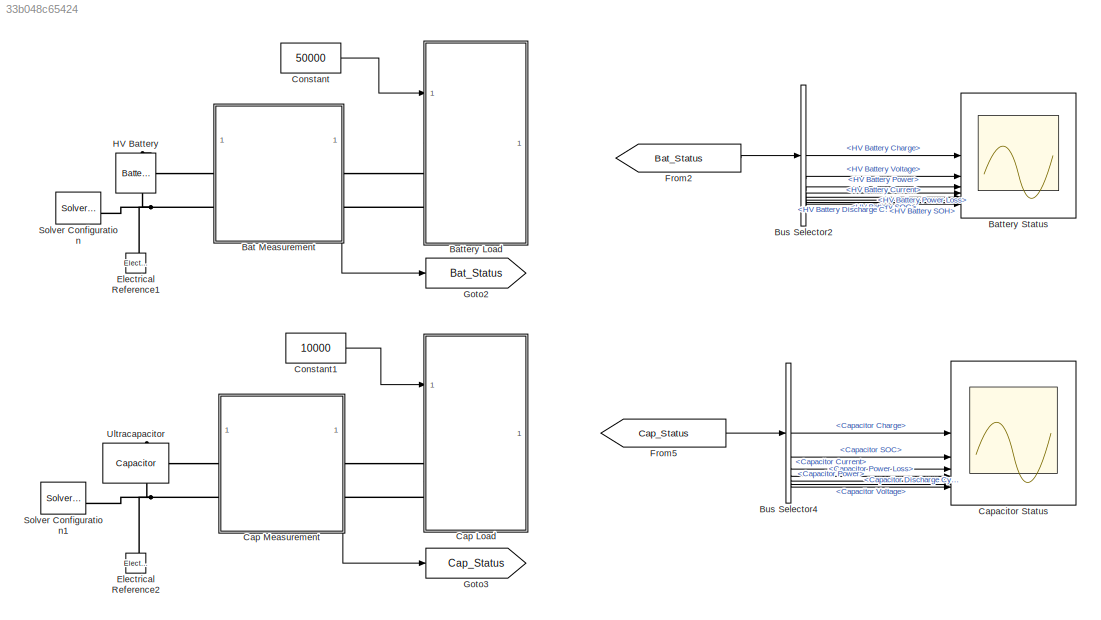
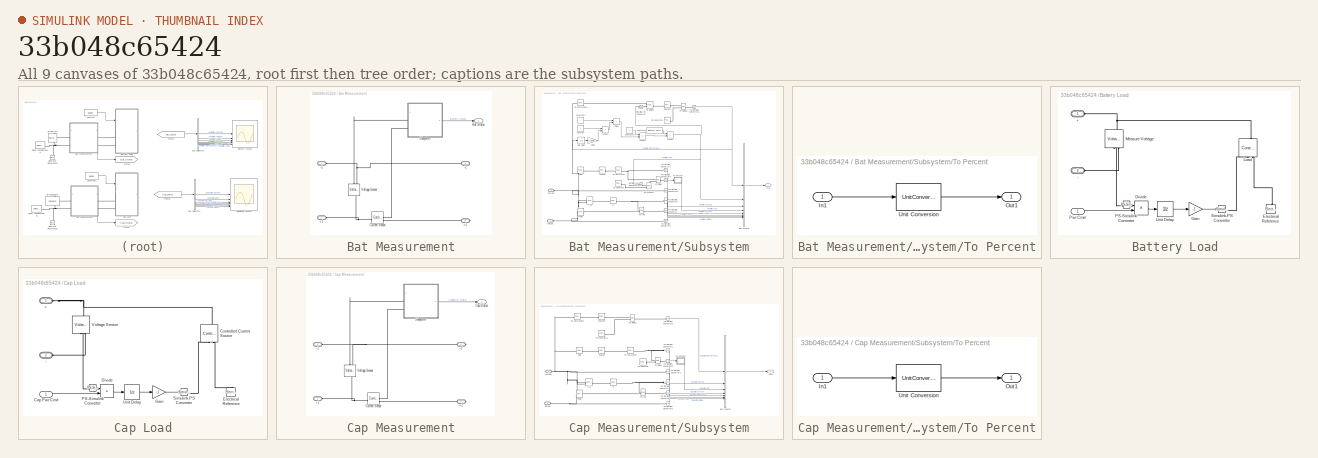
[diagram: thumbnail index - all 9 canvases of the model, root first then tree order]
MODEL slx_33b048c65424
KIND model
CONFIG AbsTol = auto
CONFIG EnableMultiTasking = off
CONFIG FixedStep = auto
CONFIG MaxStep = auto
CONFIG MinStep = auto
CONFIG RelTol = 1e-3
CONFIG SampleTimeConstraint = Unconstrained
CONFIG SolverName = VariableStepAuto
CONFIG StartTime = 0.0
CONFIG StopTime = 110
BLOCK [SubSystem] Bat Measurement
  NameLocation = top
  PortSchema = {"entries":[{"content":{"sides":[{"content":{"connectorIds":["LConn1","LConn2"]},"type":"ConnectorPlacement.EquallySpacedRectSide","uuid":"d922d1f1-019d-451f-8be4-16b01e818775"},{"content":{"connectorIds":["RConn1","RConn2"],"side":"RIGHT"},"type":"ConnectorPlacement.EquallySpacedRectSide","uuid":"6462d40f-4676-4bff-8e25-5b847feb4e24"},{"content":{"side":"TOP"},"type":"ConnectorPlacement.EquallySp...<+395ch>
BLOCK [PMIOPort] Bat Measurement/+1
  Side = Left
BLOCK [PMIOPort] Bat Measurement/+2
  Port = 3
  Side = Right
BLOCK [PMIOPort] Bat Measurement/-1
  Port = 2
  Side = Left
BLOCK [PMIOPort] Bat Measurement/-2
  Port = 4
  Side = Right
BLOCK [Outport] Bat Measurement/Bat Status
BLOCK [Reference] Bat Measurement/Current Sensor  REF=fl_lib/Electrical/Electrical Sensors/Current Sensor
  SourceBlock = fl_lib/Electrical/Electrical Sensors/Current Sensor
  SourceType = Current Sensor
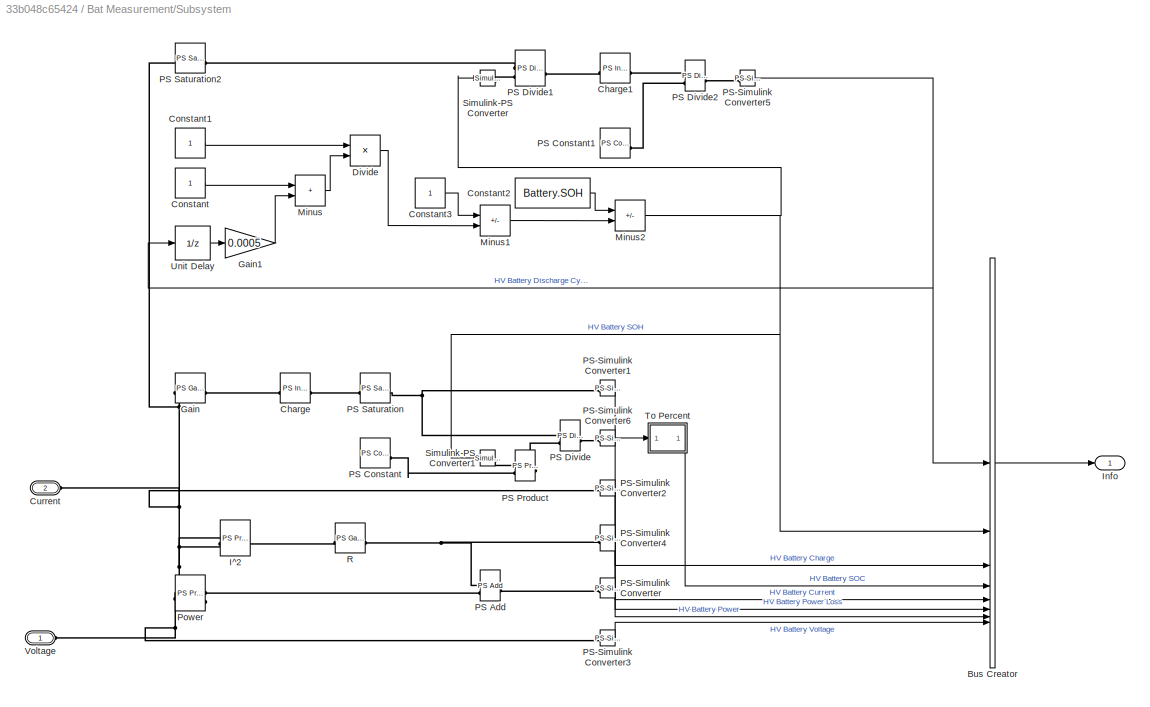
BLOCK [SubSystem] Bat Measurement/Subsystem
BLOCK [BusCreator] Bat Measurement/Subsystem/Bus Creator
  DisplayOption = bar
  InheritFromInputs = on
  Inputs = 8
BLOCK [Reference] Bat Measurement/Subsystem/Charge  REF=fl_lib/Physical Signals/Linear Operators/PS Integrator
  AttributesFormatString = %<x0> [%<x0_unit>]
  SourceBlock = fl_lib/Physical Signals/Linear Operators/PS Integrator
  SourceType = PS Integrator
BLOCK [Reference] Bat Measurement/Subsystem/Charge1  REF=fl_lib/Physical Signals/Linear Operators/PS Integrator
  AttributesFormatString = %<x0> [%<x0_unit>]
  SourceBlock = fl_lib/Physical Signals/Linear Operators/PS Integrator
  SourceType = PS Integrator
BLOCK [Constant] Bat Measurement/Subsystem/Constant
BLOCK [Constant] Bat Measurement/Subsystem/Constant1
BLOCK [Constant] Bat Measurement/Subsystem/Constant2
  Value = Battery.SOH
BLOCK [Constant] Bat Measurement/Subsystem/Constant3
BLOCK [PMIOPort] Bat Measurement/Subsystem/Current
  Port = 2
  Side = Left
BLOCK [Product] Bat Measurement/Subsystem/Divide
  Inputs = */
BLOCK [Reference] Bat Measurement/Subsystem/Gain  REF=fl_lib/Physical Signals/Functions/PS Gain
  AttributesFormatString = %<gain>
  SourceBlock = fl_lib/Physical Signals/Functions/PS Gain
  SourceType = PS Gain
BLOCK [Gain] Bat Measurement/Subsystem/Gain1
  Gain = 0.0005
BLOCK [Reference] Bat Measurement/Subsystem/I^2  REF=fl_lib/Physical Signals/Functions/PS Product
  SourceBlock = fl_lib/Physical Signals/Functions/PS Product
  SourceType = PS Product
BLOCK [Outport] Bat Measurement/Subsystem/Info
BLOCK [Sum] Bat Measurement/Subsystem/Minus
  IconShape = rectangular
BLOCK [Sum] Bat Measurement/Subsystem/Minus1
  IconShape = rectangular
  Inputs = +-
BLOCK [Sum] Bat Measurement/Subsystem/Minus2
  IconShape = rectangular
  Inputs = +-
BLOCK [Reference] Bat Measurement/Subsystem/PS Add  REF=fl_lib/Physical Signals/Functions/PS Add
  SourceBlock = fl_lib/Physical Signals/Functions/PS Add
  SourceType = PS Add
BLOCK [Reference] Bat Measurement/Subsystem/PS Constant  REF=fl_lib/Physical Signals/Sources/PS Constant
  AttributesFormatString = %<constant> [%<constant_unit>]
  NameLocation = left
  SourceBlock = fl_lib/Physical Signals/Sources/PS Constant
  SourceType = PS Constant
BLOCK [Reference] Bat Measurement/Subsystem/PS Constant1  REF=fl_lib/Physical Signals/Sources/PS Constant
  SourceBlock = fl_lib/Physical Signals/Sources/PS Constant
  SourceType = PS Constant
BLOCK [Reference] Bat Measurement/Subsystem/PS Divide  REF=fl_lib/Physical Signals/Functions/PS Divide
  SourceBlock = fl_lib/Physical Signals/Functions/PS Divide
  SourceType = PS Divide
BLOCK [Reference] Bat Measurement/Subsystem/PS Divide1  REF=fl_lib/Physical Signals/Functions/PS Divide
  SourceBlock = fl_lib/Physical Signals/Functions/PS Divide
  SourceType = PS Divide
BLOCK [Reference] Bat Measurement/Subsystem/PS Divide2  REF=fl_lib/Physical Signals/Functions/PS Divide
  SourceBlock = fl_lib/Physical Signals/Functions/PS Divide
  SourceType = PS Divide
BLOCK [Reference] Bat Measurement/Subsystem/PS Product  REF=fl_lib/Physical Signals/Functions/PS Product
  SourceBlock = fl_lib/Physical Signals/Functions/PS Product
  SourceType = PS Product
BLOCK [Reference] Bat Measurement/Subsystem/PS Saturation  REF=fl_lib/Physical Signals/Nonlinear Operators/PS Saturation
  AttributesFormatString = Upper: %<upper_limit>\nLower: %<lower_limit>
  NameLocation = top
  SourceBlock = fl_lib/Physical Signals/Nonlinear Operators/PS Saturation
  SourceType = PS Saturation
BLOCK [Reference] Bat Measurement/Subsystem/PS Saturation2  REF=fl_lib/Physical Signals/Nonlinear Operators/PS Saturation
  SourceBlock = fl_lib/Physical Signals/Nonlinear Operators/PS Saturation
  SourceType = PS Saturation
BLOCK [Reference] Bat Measurement/Subsystem/PS-Simulink Converter  REF=nesl_utility/PS-Simulink
Converter
  AttributesFormatString = %<Unit>
  SourceBlock = nesl_utility/PS-Simulink\nConverter
  SourceType = PS-Simulink\nConverter
BLOCK [Reference] Bat Measurement/Subsystem/PS-Simulink Converter1  REF=nesl_utility/PS-Simulink
Converter
  AttributesFormatString = %<Unit>
  SourceBlock = nesl_utility/PS-Simulink\nConverter
  SourceType = PS-Simulink\nConverter
BLOCK [Reference] Bat Measurement/Subsystem/PS-Simulink Converter2  REF=nesl_utility/PS-Simulink
Converter
  AttributesFormatString = %<Unit>
  SourceBlock = nesl_utility/PS-Simulink\nConverter
  SourceType = PS-Simulink\nConverter
BLOCK [Reference] Bat Measurement/Subsystem/PS-Simulink Converter3  REF=nesl_utility/PS-Simulink
Converter
  AttributesFormatString = %<Unit>
  SourceBlock = nesl_utility/PS-Simulink\nConverter
  SourceType = PS-Simulink\nConverter
BLOCK [Reference] Bat Measurement/Subsystem/PS-Simulink Converter4  REF=nesl_utility/PS-Simulink
Converter
  AttributesFormatString = %<Unit>
  SourceBlock = nesl_utility/PS-Simulink\nConverter
  SourceType = PS-Simulink\nConverter
BLOCK [Reference] Bat Measurement/Subsystem/PS-Simulink Converter5  REF=nesl_utility/PS-Simulink
Converter
  SourceBlock = nesl_utility/PS-Simulink\nConverter
  SourceType = PS-Simulink\nConverter
BLOCK [Reference] Bat Measurement/Subsystem/PS-Simulink Converter6  REF=nesl_utility/PS-Simulink
Converter
  AttributesFormatString = %<Unit>
  SourceBlock = nesl_utility/PS-Simulink\nConverter
  SourceType = PS-Simulink\nConverter
BLOCK [Reference] Bat Measurement/Subsystem/Power  REF=fl_lib/Physical Signals/Functions/PS Product
  SourceBlock = fl_lib/Physical Signals/Functions/PS Product
  SourceType = PS Product
BLOCK [Reference] Bat Measurement/Subsystem/R  REF=fl_lib/Physical Signals/Functions/PS Gain
  AttributesFormatString = %<gain> [%<gain_unit>]
  SourceBlock = fl_lib/Physical Signals/Functions/PS Gain
  SourceType = PS Gain
BLOCK [Reference] Bat Measurement/Subsystem/Simulink-PS Converter  REF=nesl_utility/Simulink-PS
Converter
  SourceBlock = nesl_utility/Simulink-PS\nConverter
  SourceType = Simulink-PS\nConverter
BLOCK [Reference] Bat Measurement/Subsystem/Simulink-PS Converter1  REF=nesl_utility/Simulink-PS
Converter
  SourceBlock = nesl_utility/Simulink-PS\nConverter
  SourceType = Simulink-PS\nConverter
BLOCK [SubSystem] Bat Measurement/Subsystem/To Percent
  ShowPortLabels = none
BLOCK [Inport] Bat Measurement/Subsystem/To Percent/In1
BLOCK [Outport] Bat Measurement/Subsystem/To Percent/Out1
  AttributesFormatString = %<Unit>
  Unit = %
BLOCK [UnitConversion] Bat Measurement/Subsystem/To Percent/Unit Conversion
BLOCK [UnitDelay] Bat Measurement/Subsystem/Unit Delay
  HasFrameUpgradeWarning = on
  SampleTime = -1
BLOCK [PMIOPort] Bat Measurement/Subsystem/Voltage
  Side = Left
BLOCK [Reference] Bat Measurement/Voltage Sensor  REF=fl_lib/Electrical/Electrical Sensors/Voltage Sensor
  NameLocation = right
  SourceBlock = fl_lib/Electrical/Electrical Sensors/Voltage Sensor
  SourceType = Voltage Sensor
BLOCK [SubSystem] Battery Load
  NameLocation = top
BLOCK [PMIOPort] Battery Load/+
  Side = Left
BLOCK [PMIOPort] Battery Load/-
  Port = 2
  Side = Left
BLOCK [Product] Battery Load/Divide
  Inputs = /*
BLOCK [Reference] Battery Load/Electrical Reference  REF=fl_lib/Electrical/Electrical Elements/Electrical Reference
  NameLocation = right
  SourceBlock = fl_lib/Electrical/Electrical Elements/Electrical Reference
  SourceType = Electrical Reference
BLOCK [Gain] Battery Load/Gain
  Gain = -1
BLOCK [Reference] Battery Load/Load  REF=fl_lib/Electrical/Electrical Sources/Controlled Current
Source
  NameLocation = right
  SourceBlock = fl_lib/Electrical/Electrical Sources/Controlled Current\nSource
  SourceType = Controlled Current\nSource
BLOCK [Reference] Battery Load/Measure Voltage  REF=fl_lib/Electrical/Electrical Sensors/Voltage Sensor
  NameLocation = right
  SourceBlock = fl_lib/Electrical/Electrical Sensors/Voltage Sensor
  SourceType = Voltage Sensor
BLOCK [Reference] Battery Load/PS-Simulink Converter  REF=nesl_utility/PS-Simulink
Converter
  SourceBlock = nesl_utility/PS-Simulink\nConverter
  SourceType = PS-Simulink\nConverter
BLOCK [Inport] Battery Load/Pwr Cmd
BLOCK [Reference] Battery Load/Simulink-PS Converter  REF=nesl_utility/Simulink-PS
Converter
  SourceBlock = nesl_utility/Simulink-PS\nConverter
  SourceType = Simulink-PS\nConverter
BLOCK [UnitDelay] Battery Load/Unit Delay
  HasFrameUpgradeWarning = on
  SampleTime = -1
BLOCK [Scope] Battery Status
  Floating = off
  NumInputPorts = 8
  ScopeSpecificationString = Simulink.scopes.TimeScopeBlockCfg('CurrentConfiguration', extmgr.ConfigurationSet(extmgr.Configuration('Core','General UI',true),extmgr.Configuration('Core','Source UI',true),extmgr.Configuration('Sources','WiredSimulink',true,'DataLoggingVariableName','ScopeData1','DataLogging',true,'DataLoggingSaveFormat','StructureWithTime'),extmgr.Configuration('Visuals','Time Domain',true,'SerializedDisplays'...<+6371ch>
BLOCK [BusSelector] Bus Selector2
  OutputSignals = HV Battery Charge,HV Battery Voltage,HV Battery Power,HV Battery Power Loss,HV Battery Current,HV Battery SOC,HV Battery Discharge Cycle,HV Battery SOH
BLOCK [BusSelector] Bus Selector4
  OutputSignals = Capacitor Charge,Capacitor SOC,Capacitor Current,Capacitor Power Loss,Capacitor Power,Capacitor Voltage,Capacitor Discharge Cycle
BLOCK [SubSystem] Cap Load
  NameLocation = top
BLOCK [PMIOPort] Cap Load/+
  Side = Left
BLOCK [PMIOPort] Cap Load/-
  Port = 2
  Side = Left
BLOCK [Inport] Cap Load/Cap Pwr Cmd
BLOCK [Reference] Cap Load/Controlled Current Source  REF=fl_lib/Electrical/Electrical Sources/Controlled Current
Source
  NameLocation = right
  SourceBlock = fl_lib/Electrical/Electrical Sources/Controlled Current\nSource
  SourceType = Controlled Current\nSource
BLOCK [Product] Cap Load/Divide
  Inputs = /*
BLOCK [Reference] Cap Load/Electrical Reference  REF=fl_lib/Electrical/Electrical Elements/Electrical Reference
  NameLocation = right
  SourceBlock = fl_lib/Electrical/Electrical Elements/Electrical Reference
  SourceType = Electrical Reference
BLOCK [Gain] Cap Load/Gain
  Gain = -1
BLOCK [Reference] Cap Load/PS-Simulink Converter  REF=nesl_utility/PS-Simulink
Converter
  SourceBlock = nesl_utility/PS-Simulink\nConverter
  SourceType = PS-Simulink\nConverter
BLOCK [Reference] Cap Load/Simulink-PS Converter  REF=nesl_utility/Simulink-PS
Converter
  SourceBlock = nesl_utility/Simulink-PS\nConverter
  SourceType = Simulink-PS\nConverter
BLOCK [UnitDelay] Cap Load/Unit Delay
  HasFrameUpgradeWarning = on
  SampleTime = -1
BLOCK [Reference] Cap Load/Voltage Sensor  REF=fl_lib/Electrical/Electrical Sensors/Voltage Sensor
  NameLocation = right
  SourceBlock = fl_lib/Electrical/Electrical Sensors/Voltage Sensor
  SourceType = Voltage Sensor
BLOCK [SubSystem] Cap Measurement
  NameLocation = top
  PortSchema = {"entries":[{"content":{"sides":[{"content":{"connectorIds":["LConn1","LConn2"]},"type":"ConnectorPlacement.EquallySpacedRectSide","uuid":"d922d1f1-019d-451f-8be4-16b01e818775"},{"content":{"connectorIds":["RConn1","RConn2"],"side":"RIGHT"},"type":"ConnectorPlacement.EquallySpacedRectSide","uuid":"6462d40f-4676-4bff-8e25-5b847feb4e24"},{"content":{"side":"TOP"},"type":"ConnectorPlacement.EquallySp...<+395ch>
BLOCK [PMIOPort] Cap Measurement/+1
  Side = Left
BLOCK [PMIOPort] Cap Measurement/+2
  Port = 3
  Side = Right
BLOCK [PMIOPort] Cap Measurement/-1
  Port = 2
  Side = Left
BLOCK [PMIOPort] Cap Measurement/-2
  Port = 4
  Side = Right
BLOCK [Outport] Cap Measurement/Cap Status
BLOCK [Reference] Cap Measurement/Current Sensor  REF=fl_lib/Electrical/Electrical Sensors/Current Sensor
  SourceBlock = fl_lib/Electrical/Electrical Sensors/Current Sensor
  SourceType = Current Sensor
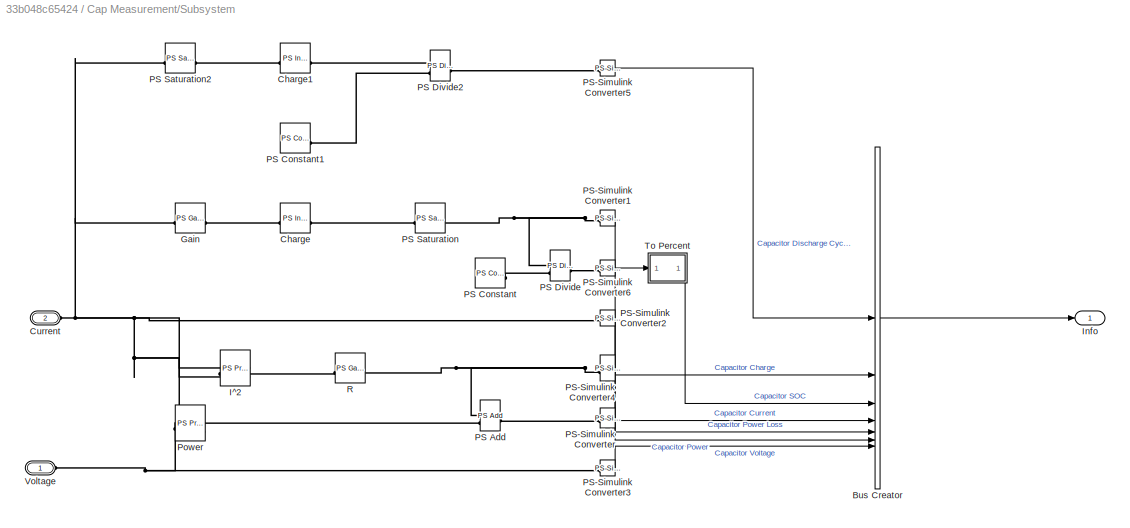
BLOCK [SubSystem] Cap Measurement/Subsystem
BLOCK [BusCreator] Cap Measurement/Subsystem/Bus Creator
  DisplayOption = bar
  InheritFromInputs = on
  Inputs = 7
BLOCK [Reference] Cap Measurement/Subsystem/Charge  REF=fl_lib/Physical Signals/Linear Operators/PS Integrator
  AttributesFormatString = %<x0> [%<x0_unit>]
  SourceBlock = fl_lib/Physical Signals/Linear Operators/PS Integrator
  SourceType = PS Integrator
BLOCK [Reference] Cap Measurement/Subsystem/Charge1  REF=fl_lib/Physical Signals/Linear Operators/PS Integrator
  AttributesFormatString = %<x0> [%<x0_unit>]
  SourceBlock = fl_lib/Physical Signals/Linear Operators/PS Integrator
  SourceType = PS Integrator
BLOCK [PMIOPort] Cap Measurement/Subsystem/Current
  Port = 2
  Side = Left
BLOCK [Reference] Cap Measurement/Subsystem/Gain  REF=fl_lib/Physical Signals/Functions/PS Gain
  AttributesFormatString = %<gain>
  SourceBlock = fl_lib/Physical Signals/Functions/PS Gain
  SourceType = PS Gain
BLOCK [Reference] Cap Measurement/Subsystem/I^2  REF=fl_lib/Physical Signals/Functions/PS Product
  SourceBlock = fl_lib/Physical Signals/Functions/PS Product
  SourceType = PS Product
BLOCK [Outport] Cap Measurement/Subsystem/Info
BLOCK [Reference] Cap Measurement/Subsystem/PS Add  REF=fl_lib/Physical Signals/Functions/PS Add
  SourceBlock = fl_lib/Physical Signals/Functions/PS Add
  SourceType = PS Add
BLOCK [Reference] Cap Measurement/Subsystem/PS Constant  REF=fl_lib/Physical Signals/Sources/PS Constant
  AttributesFormatString = %<constant> [%<constant_unit>]
  NameLocation = left
  SourceBlock = fl_lib/Physical Signals/Sources/PS Constant
  SourceType = PS Constant
BLOCK [Reference] Cap Measurement/Subsystem/PS Constant1  REF=fl_lib/Physical Signals/Sources/PS Constant
  AttributesFormatString = %<constant> [%<constant_unit>]
  NameLocation = left
  SourceBlock = fl_lib/Physical Signals/Sources/PS Constant
  SourceType = PS Constant
BLOCK [Reference] Cap Measurement/Subsystem/PS Divide  REF=fl_lib/Physical Signals/Functions/PS Divide
  SourceBlock = fl_lib/Physical Signals/Functions/PS Divide
  SourceType = PS Divide
BLOCK [Reference] Cap Measurement/Subsystem/PS Divide2  REF=fl_lib/Physical Signals/Functions/PS Divide
  SourceBlock = fl_lib/Physical Signals/Functions/PS Divide
  SourceType = PS Divide
BLOCK [Reference] Cap Measurement/Subsystem/PS Saturation  REF=fl_lib/Physical Signals/Nonlinear Operators/PS Saturation
  AttributesFormatString = Upper: %<upper_limit>\nLower: %<lower_limit>
  NameLocation = top
  SourceBlock = fl_lib/Physical Signals/Nonlinear Operators/PS Saturation
  SourceType = PS Saturation
BLOCK [Reference] Cap Measurement/Subsystem/PS Saturation2  REF=fl_lib/Physical Signals/Nonlinear Operators/PS Saturation
  SourceBlock = fl_lib/Physical Signals/Nonlinear Operators/PS Saturation
  SourceType = PS Saturation
BLOCK [Reference] Cap Measurement/Subsystem/PS-Simulink Converter  REF=nesl_utility/PS-Simulink
Converter
  AttributesFormatString = %<Unit>
  SourceBlock = nesl_utility/PS-Simulink\nConverter
  SourceType = PS-Simulink\nConverter
BLOCK [Reference] Cap Measurement/Subsystem/PS-Simulink Converter1  REF=nesl_utility/PS-Simulink
Converter
  AttributesFormatString = %<Unit>
  SourceBlock = nesl_utility/PS-Simulink\nConverter
  SourceType = PS-Simulink\nConverter
BLOCK [Reference] Cap Measurement/Subsystem/PS-Simulink Converter2  REF=nesl_utility/PS-Simulink
Converter
  AttributesFormatString = %<Unit>
  SourceBlock = nesl_utility/PS-Simulink\nConverter
  SourceType = PS-Simulink\nConverter
BLOCK [Reference] Cap Measurement/Subsystem/PS-Simulink Converter3  REF=nesl_utility/PS-Simulink
Converter
  AttributesFormatString = %<Unit>
  SourceBlock = nesl_utility/PS-Simulink\nConverter
  SourceType = PS-Simulink\nConverter
BLOCK [Reference] Cap Measurement/Subsystem/PS-Simulink Converter4  REF=nesl_utility/PS-Simulink
Converter
  AttributesFormatString = %<Unit>
  SourceBlock = nesl_utility/PS-Simulink\nConverter
  SourceType = PS-Simulink\nConverter
BLOCK [Reference] Cap Measurement/Subsystem/PS-Simulink Converter5  REF=nesl_utility/PS-Simulink
Converter
  SourceBlock = nesl_utility/PS-Simulink\nConverter
  SourceType = PS-Simulink\nConverter
BLOCK [Reference] Cap Measurement/Subsystem/PS-Simulink Converter6  REF=nesl_utility/PS-Simulink
Converter
  AttributesFormatString = %<Unit>
  SourceBlock = nesl_utility/PS-Simulink\nConverter
  SourceType = PS-Simulink\nConverter
BLOCK [Reference] Cap Measurement/Subsystem/Power  REF=fl_lib/Physical Signals/Functions/PS Product
  SourceBlock = fl_lib/Physical Signals/Functions/PS Product
  SourceType = PS Product
BLOCK [Reference] Cap Measurement/Subsystem/R  REF=fl_lib/Physical Signals/Functions/PS Gain
  AttributesFormatString = %<gain> [%<gain_unit>]
  SourceBlock = fl_lib/Physical Signals/Functions/PS Gain
  SourceType = PS Gain
BLOCK [SubSystem] Cap Measurement/Subsystem/To Percent
  ShowPortLabels = none
BLOCK [Inport] Cap Measurement/Subsystem/To Percent/In1
BLOCK [Outport] Cap Measurement/Subsystem/To Percent/Out1
  AttributesFormatString = %<Unit>
  Unit = %
BLOCK [UnitConversion] Cap Measurement/Subsystem/To Percent/Unit Conversion
BLOCK [PMIOPort] Cap Measurement/Subsystem/Voltage
  Side = Left
BLOCK [Reference] Cap Measurement/Voltage Sensor  REF=fl_lib/Electrical/Electrical Sensors/Voltage Sensor
  NameLocation = right
  SourceBlock = fl_lib/Electrical/Electrical Sensors/Voltage Sensor
  SourceType = Voltage Sensor
BLOCK [Scope] Capacitor Status
  Floating = off
  NumInputPorts = 7
  ScopeSpecificationString = Simulink.scopes.TimeScopeBlockCfg('CurrentConfiguration', extmgr.ConfigurationSet(extmgr.Configuration('Core','General UI',true),extmgr.Configuration('Core','Source UI',true),extmgr.Configuration('Sources','WiredSimulink',true,'DataLogging',true,'DataLoggingSaveFormat','StructureWithTime'),extmgr.Configuration('Visuals','Time Domain',true,'SerializedDisplays',{struct('MinYLimReal','1.59064','MaxYL...<+6323ch>
BLOCK [Constant] Constant
  Value = 50000
BLOCK [Constant] Constant1
  Value = 10000
BLOCK [Reference] Electrical Reference1  REF=fl_lib/Electrical/Electrical Elements/Electrical Reference
  NameLocation = right
  SourceBlock = fl_lib/Electrical/Electrical Elements/Electrical Reference
  SourceType = Electrical Reference
BLOCK [Reference] Electrical Reference2  REF=fl_lib/Electrical/Electrical Elements/Electrical Reference
  NameLocation = right
  SourceBlock = fl_lib/Electrical/Electrical Elements/Electrical Reference
  SourceType = Electrical Reference
BLOCK [From] From2
  GotoTag = Bat_Status
BLOCK [From] From5
  GotoTag = Cap_Status
BLOCK [Goto] Goto2
  GotoTag = Bat_Status
BLOCK [Goto] Goto3
  GotoTag = Cap_Status
BLOCK [Reference] HV Battery  REF=batteryecm_lib/Battery
  NameLocation = left
  SourceBlock = batteryecm_lib/Battery
  SourceType = Battery
BLOCK [Reference] Solver Configuration  REF=nesl_utility/Solver
Configuration
  SourceBlock = nesl_utility/Solver\nConfiguration
  SourceType = Solver\nConfiguration
BLOCK [Reference] Solver Configuration1  REF=nesl_utility/Solver
Configuration
  SourceBlock = nesl_utility/Solver\nConfiguration
  SourceType = Solver\nConfiguration
BLOCK [Reference] Ultracapacitor  REF=fl_lib/Electrical/Electrical Elements/Capacitor
  NameLocation = left
  SourceBlock = fl_lib/Electrical/Electrical Elements/Capacitor
  SourceType = Capacitor
LINE Bat Measurement/Subsystem/Bus Creator:1 -> Bat Measurement/Subsystem/Info:1
LINE Bat Measurement/Subsystem/Constant1:1 -> Bat Measurement/Subsystem/Divide:1
LINE Bat Measurement/Subsystem/Constant2:1 -> Bat Measurement/Subsystem/Minus2:1
LINE Bat Measurement/Subsystem/Constant3:1 -> Bat Measurement/Subsystem/Minus1:1
LINE Bat Measurement/Subsystem/Constant:1 -> Bat Measurement/Subsystem/Minus:1
LINE Bat Measurement/Subsystem/Divide:1 -> Bat Measurement/Subsystem/Minus1:2
LINE Bat Measurement/Subsystem/Gain1:1 -> Bat Measurement/Subsystem/Minus:2
LINE Bat Measurement/Subsystem/Minus1:1 -> Bat Measurement/Subsystem/Minus2:2
NET Bat Measurement/Subsystem/Minus2:1 -> Bat Measurement/Subsystem/Bus Creator:2, Bat Measurement/Subsystem/Simulink-PS Converter1:1, Bat Measurement/Subsystem/Simulink-PS Converter:1
LINE Bat Measurement/Subsystem/Minus:1 -> Bat Measurement/Subsystem/Divide:2
LINE Bat Measurement/Subsystem/PS-Simulink Converter1:1 -> Bat Measurement/Subsystem/Bus Creator:3
LINE Bat Measurement/Subsystem/PS-Simulink Converter2:1 -> Bat Measurement/Subsystem/Bus Creator:5
LINE Bat Measurement/Subsystem/PS-Simulink Converter3:1 -> Bat Measurement/Subsystem/Bus Creator:8
LINE Bat Measurement/Subsystem/PS-Simulink Converter4:1 -> Bat Measurement/Subsystem/Bus Creator:6
NET Bat Measurement/Subsystem/PS-Simulink Converter5:1 -> Bat Measurement/Subsystem/Bus Creator:1, Bat Measurement/Subsystem/Unit Delay:1
LINE Bat Measurement/Subsystem/PS-Simulink Converter6:1 -> Bat Measurement/Subsystem/To Percent:1
LINE Bat Measurement/Subsystem/PS-Simulink Converter:1 -> Bat Measurement/Subsystem/Bus Creator:7
LINE Bat Measurement/Subsystem/To Percent/In1:1 -> Bat Measurement/Subsystem/To Percent/Unit Conversion:1
LINE Bat Measurement/Subsystem/To Percent/Unit Conversion:1 -> Bat Measurement/Subsystem/To Percent/Out1:1
LINE Bat Measurement/Subsystem/To Percent:1 -> Bat Measurement/Subsystem/Bus Creator:4
LINE Bat Measurement/Subsystem/Unit Delay:1 -> Bat Measurement/Subsystem/Gain1:1
LINE Bat Measurement/Subsystem:1 -> Bat Measurement/Bat Status:1
LINE Bat Measurement:1 -> Goto2:1
LINE Battery Load/Divide:1 -> Battery Load/Unit Delay:1
LINE Battery Load/Gain:1 -> Battery Load/Simulink-PS Converter:1
LINE Battery Load/PS-Simulink Converter:1 -> Battery Load/Divide:1
LINE Battery Load/Pwr Cmd:1 -> Battery Load/Divide:2
LINE Battery Load/Unit Delay:1 -> Battery Load/Gain:1
LINE Bus Selector2:1 -> Battery Status:1
LINE Bus Selector2:2 -> Battery Status:2
LINE Bus Selector2:3 -> Battery Status:3
LINE Bus Selector2:4 -> Battery Status:4
LINE Bus Selector2:5 -> Battery Status:5
LINE Bus Selector2:6 -> Battery Status:6
LINE Bus Selector2:7 -> Battery Status:7
LINE Bus Selector2:8 -> Battery Status:8
LINE Bus Selector4:1 -> Capacitor Status:1
LINE Bus Selector4:2 -> Capacitor Status:2
LINE Bus Selector4:3 -> Capacitor Status:3
LINE Bus Selector4:4 -> Capacitor Status:4
LINE Bus Selector4:5 -> Capacitor Status:5
LINE Bus Selector4:6 -> Capacitor Status:6
LINE Bus Selector4:7 -> Capacitor Status:7
LINE Cap Load/Cap Pwr Cmd:1 -> Cap Load/Divide:2
LINE Cap Load/Divide:1 -> Cap Load/Unit Delay:1
LINE Cap Load/Gain:1 -> Cap Load/Simulink-PS Converter:1
LINE Cap Load/PS-Simulink Converter:1 -> Cap Load/Divide:1
LINE Cap Load/Unit Delay:1 -> Cap Load/Gain:1
LINE Cap Measurement/Subsystem/Bus Creator:1 -> Cap Measurement/Subsystem/Info:1
LINE Cap Measurement/Subsystem/PS-Simulink Converter1:1 -> Cap Measurement/Subsystem/Bus Creator:2
LINE Cap Measurement/Subsystem/PS-Simulink Converter2:1 -> Cap Measurement/Subsystem/Bus Creator:4
LINE Cap Measurement/Subsystem/PS-Simulink Converter3:1 -> Cap Measurement/Subsystem/Bus Creator:7
LINE Cap Measurement/Subsystem/PS-Simulink Converter4:1 -> Cap Measurement/Subsystem/Bus Creator:5
LINE Cap Measurement/Subsystem/PS-Simulink Converter5:1 -> Cap Measurement/Subsystem/Bus Creator:1
LINE Cap Measurement/Subsystem/PS-Simulink Converter6:1 -> Cap Measurement/Subsystem/To Percent:1
LINE Cap Measurement/Subsystem/PS-Simulink Converter:1 -> Cap Measurement/Subsystem/Bus Creator:6
LINE Cap Measurement/Subsystem/To Percent/In1:1 -> Cap Measurement/Subsystem/To Percent/Unit Conversion:1
LINE Cap Measurement/Subsystem/To Percent/Unit Conversion:1 -> Cap Measurement/Subsystem/To Percent/Out1:1
LINE Cap Measurement/Subsystem/To Percent:1 -> Cap Measurement/Subsystem/Bus Creator:3
LINE Cap Measurement/Subsystem:1 -> Cap Measurement/Cap Status:1
LINE Cap Measurement:1 -> Goto3:1
LINE Constant1:1 -> Cap Load:1
LINE Constant:1 -> Battery Load:1
LINE From2:1 -> Bus Selector2:1
LINE From5:1 -> Bus Selector4:1
PNET net1: Bat Measurement/+1:RConn1 -- Bat Measurement/Current Sensor:LConn1 -- Bat Measurement/Voltage Sensor:LConn1
PLINE Bat Measurement/+2:RConn1 -- Bat Measurement/Current Sensor:RConn2
PNET net2: Bat Measurement/-1:RConn1 -- Bat Measurement/-2:RConn1 -- Bat Measurement/Voltage Sensor:RConn2
PLINE Bat Measurement/Current Sensor:RConn1 -- Bat Measurement/Subsystem:LConn2
PLINE Bat Measurement/Subsystem/Charge1:LConn1 -- Bat Measurement/Subsystem/PS Divide1:RConn1
PLINE Bat Measurement/Subsystem/Charge1:RConn1 -- Bat Measurement/Subsystem/PS Divide2:LConn1
PLINE Bat Measurement/Subsystem/Charge:LConn1 -- Bat Measurement/Subsystem/Gain:RConn1
PLINE Bat Measurement/Subsystem/Charge:RConn1 -- Bat Measurement/Subsystem/PS Saturation:LConn1
PNET net3: Bat Measurement/Subsystem/Current:RConn1 -- Bat Measurement/Subsystem/Gain:LConn1 -- Bat Measurement/Subsystem/I^2:LConn1 -- Bat Measurement/Subsystem/I^2:LConn2 -- Bat Measurement/Subsystem/PS Saturation2:LConn1 -- Bat Measurement/Subsystem/PS-Simulink Converter2:LConn1 -- Bat Measurement/Subsystem/Power:LConn2
PLINE Bat Measurement/Subsystem/I^2:RConn1 -- Bat Measurement/Subsystem/R:LConn1
PNET net4: Bat Measurement/Subsystem/PS Add:LConn1 -- Bat Measurement/Subsystem/PS-Simulink Converter4:LConn1 -- Bat Measurement/Subsystem/R:RConn1
PLINE Bat Measurement/Subsystem/PS Add:LConn2 -- Bat Measurement/Subsystem/Power:RConn1
PLINE Bat Measurement/Subsystem/PS Add:RConn1 -- Bat Measurement/Subsystem/PS-Simulink Converter:LConn1
PLINE Bat Measurement/Subsystem/PS Constant1:RConn1 -- Bat Measurement/Subsystem/PS Divide2:LConn2
PLINE Bat Measurement/Subsystem/PS Constant:RConn1 -- Bat Measurement/Subsystem/PS Product:LConn2
PLINE Bat Measurement/Subsystem/PS Divide1:LConn1 -- Bat Measurement/Subsystem/PS Saturation2:RConn1
PLINE Bat Measurement/Subsystem/PS Divide1:LConn2 -- Bat Measurement/Subsystem/Simulink-PS Converter:RConn1
PLINE Bat Measurement/Subsystem/PS Divide2:RConn1 -- Bat Measurement/Subsystem/PS-Simulink Converter5:LConn1
PNET net5: Bat Measurement/Subsystem/PS Divide:LConn1 -- Bat Measurement/Subsystem/PS Saturation:RConn1 -- Bat Measurement/Subsystem/PS-Simulink Converter1:LConn1
PLINE Bat Measurement/Subsystem/PS Divide:LConn2 -- Bat Measurement/Subsystem/PS Product:RConn1
PLINE Bat Measurement/Subsystem/PS Divide:RConn1 -- Bat Measurement/Subsystem/PS-Simulink Converter6:LConn1
PLINE Bat Measurement/Subsystem/PS Product:LConn1 -- Bat Measurement/Subsystem/Simulink-PS Converter1:RConn1
PNET net6: Bat Measurement/Subsystem/PS-Simulink Converter3:LConn1 -- Bat Measurement/Subsystem/Power:LConn1 -- Bat Measurement/Subsystem/Voltage:RConn1
PLINE Bat Measurement/Subsystem:LConn1 -- Bat Measurement/Voltage Sensor:RConn1
PLINE Bat Measurement:LConn1 -- HV Battery:LConn1
PNET net7: Bat Measurement:LConn2 -- Electrical Reference1:LConn1 -- HV Battery:RConn1 -- Solver Configuration:RConn1
PLINE Bat Measurement:RConn1 -- Battery Load:LConn1
PLINE Bat Measurement:RConn2 -- Battery Load:LConn2
PNET net8: Battery Load/+:RConn1 -- Battery Load/Load:LConn1 -- Battery Load/Measure Voltage:LConn1
PLINE Battery Load/-:RConn1 -- Battery Load/Measure Voltage:RConn2
PLINE Battery Load/Electrical Reference:LConn1 -- Battery Load/Load:RConn2
PLINE Battery Load/Load:RConn1 -- Battery Load/Simulink-PS Converter:RConn1
PLINE Battery Load/Measure Voltage:RConn1 -- Battery Load/PS-Simulink Converter:LConn1
PNET net9: Cap Load/+:RConn1 -- Cap Load/Controlled Current Source:LConn1 -- Cap Load/Voltage Sensor:LConn1
PLINE Cap Load/-:RConn1 -- Cap Load/Voltage Sensor:RConn2
PLINE Cap Load/Controlled Current Source:RConn1 -- Cap Load/Simulink-PS Converter:RConn1
PLINE Cap Load/Controlled Current Source:RConn2 -- Cap Load/Electrical Reference:LConn1
PLINE Cap Load/PS-Simulink Converter:LConn1 -- Cap Load/Voltage Sensor:RConn1
PLINE Cap Load:LConn1 -- Cap Measurement:RConn1
PLINE Cap Load:LConn2 -- Cap Measurement:RConn2
PNET net10: Cap Measurement/+1:RConn1 -- Cap Measurement/Current Sensor:LConn1 -- Cap Measurement/Voltage Sensor:LConn1
PLINE Cap Measurement/+2:RConn1 -- Cap Measurement/Current Sensor:RConn2
PNET net11: Cap Measurement/-1:RConn1 -- Cap Measurement/-2:RConn1 -- Cap Measurement/Voltage Sensor:RConn2
PLINE Cap Measurement/Current Sensor:RConn1 -- Cap Measurement/Subsystem:LConn2
PLINE Cap Measurement/Subsystem/Charge1:LConn1 -- Cap Measurement/Subsystem/PS Saturation2:RConn1
PLINE Cap Measurement/Subsystem/Charge1:RConn1 -- Cap Measurement/Subsystem/PS Divide2:LConn1
PLINE Cap Measurement/Subsystem/Charge:LConn1 -- Cap Measurement/Subsystem/Gain:RConn1
PLINE Cap Measurement/Subsystem/Charge:RConn1 -- Cap Measurement/Subsystem/PS Saturation:LConn1
PNET net12: Cap Measurement/Subsystem/Current:RConn1 -- Cap Measurement/Subsystem/Gain:LConn1 -- Cap Measurement/Subsystem/I^2:LConn1 -- Cap Measurement/Subsystem/I^2:LConn2 -- Cap Measurement/Subsystem/PS Saturation2:LConn1 -- Cap Measurement/Subsystem/PS-Simulink Converter2:LConn1 -- Cap Measurement/Subsystem/Power:LConn2
PLINE Cap Measurement/Subsystem/I^2:RConn1 -- Cap Measurement/Subsystem/R:LConn1
PNET net13: Cap Measurement/Subsystem/PS Add:LConn1 -- Cap Measurement/Subsystem/PS-Simulink Converter4:LConn1 -- Cap Measurement/Subsystem/R:RConn1
PLINE Cap Measurement/Subsystem/PS Add:LConn2 -- Cap Measurement/Subsystem/Power:RConn1
PLINE Cap Measurement/Subsystem/PS Add:RConn1 -- Cap Measurement/Subsystem/PS-Simulink Converter:LConn1
PLINE Cap Measurement/Subsystem/PS Constant1:RConn1 -- Cap Measurement/Subsystem/PS Divide2:LConn2
PLINE Cap Measurement/Subsystem/PS Constant:RConn1 -- Cap Measurement/Subsystem/PS Divide:LConn2
PLINE Cap Measurement/Subsystem/PS Divide2:RConn1 -- Cap Measurement/Subsystem/PS-Simulink Converter5:LConn1
PNET net14: Cap Measurement/Subsystem/PS Divide:LConn1 -- Cap Measurement/Subsystem/PS Saturation:RConn1 -- Cap Measurement/Subsystem/PS-Simulink Converter1:LConn1
PLINE Cap Measurement/Subsystem/PS Divide:RConn1 -- Cap Measurement/Subsystem/PS-Simulink Converter6:LConn1
PNET net15: Cap Measurement/Subsystem/PS-Simulink Converter3:LConn1 -- Cap Measurement/Subsystem/Power:LConn1 -- Cap Measurement/Subsystem/Voltage:RConn1
PLINE Cap Measurement/Subsystem:LConn1 -- Cap Measurement/Voltage Sensor:RConn1
PLINE Cap Measurement:LConn1 -- Ultracapacitor:LConn1
PNET net16: Cap Measurement:LConn2 -- Electrical Reference2:LConn1 -- Solver Configuration1:RConn1 -- Ultracapacitor:RConn1
note: NET lines group one-source signal fan-out (src -> all destinations, sorted); 1:1 wires keep LINE; PNET lines group multi-terminal physical nets as a canonical sorted terminal list (undirected conserving connections); 2-terminal nets keep the pairwise PLINE form
